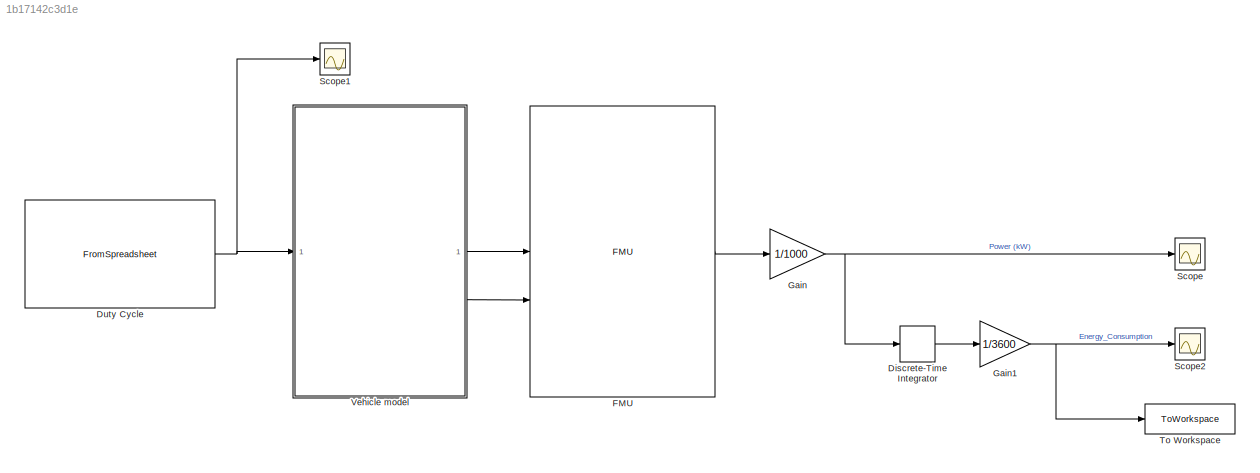
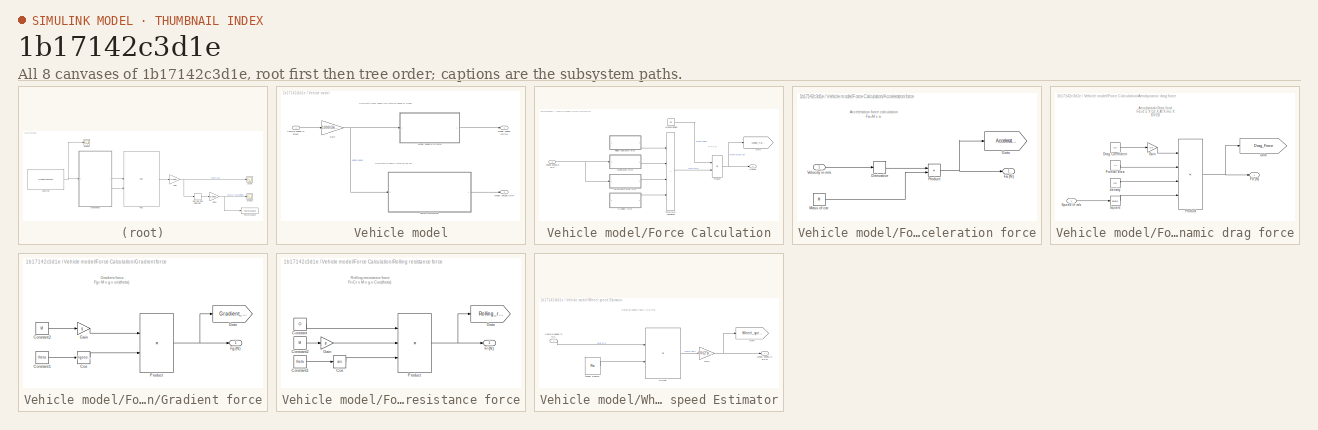
[diagram: thumbnail index - all 8 canvases of the model, root first then tree order]
MODEL slx_1b17142c3d1e
KIND model
CONFIG AbsTol = auto
CONFIG EnableMultiTasking = off
CONFIG FixedStep = auto
CONFIG MaxStep = 1
CONFIG MinStep = auto
CONFIG RelTol = 1e-3
CONFIG SampleTimeConstraint = Unconstrained
CONFIG SolverName = VariableStepAuto
CONFIG StartTime = 0.0
CONFIG StopTime = 1800
BLOCK [DiscreteIntegrator] Discrete-Time Integrator
  ICPrevOutput = DiscIntNeverNeededParam
  ICPrevScaledInput = DiscIntNeverNeededParam
  InitialConditionSetting = Auto
  SampleTime = -1
BLOCK [FromSpreadsheet] Duty Cycle
  FileName = WLTC_DRIVE_CYCLE_CLASS_3.xlsx
BLOCK [FMU] FMU
  FMUCachedDialogLayout = {"Geometry":[1315,326,535,467],"ParameterColumnsWidthConfig":"{\"columns\":[{\"name\":\"Parameter\",\"width\":144},{\"name\":\"Value\",\"width\":115},{\"name\":\"Unit\",\"width\":107},{\"name\":\"Description\",\"width\":149}]}","InputColumnsWidthConfig":[],"OutputColumnsWidthConfig":[]}
  FMUCreateBusObject = off
  FMUDebugLogging = on
  FMUInitializeEnumObject = off
  FMUMode = CoSimulation
  FMUName = eduModel.fmu
  MaskDisplay = if (exist([Simulink.fileGenControl('get','CacheFolder') '\slprj\_fmu\33689cabd0e25a119382c1209330c931\eduModel\model.png'],'file'))\n    image([Simulink.fileGenControl('get','CacheFolder') '\slprj\_fmu\33689cabd0e25a119382c1209330c931\eduModel\model.png']);\nelse\n    disp('eduModel');\nend\nport_label('output',1,'eduPwrIn_W');\nport_label('input',1,'eduSpd_rpm');\nport_label('input',2,'eduTrq_Nm');
  MaskPromptString = motorConfigmotorConfig|ratio[1]Reducer Ratio
  MaskType = eduModel [Co-Simulation, v2.0]
  motorConfig = 3
  ratio = 15
BLOCK [Gain] Gain
  Gain = 1/1000
BLOCK [Gain] Gain1
  Gain = 1/3600
BLOCK [Scope] Scope
  Floating = off
  NumInputPorts = 1
  ScopeSpecificationString = Simulink.scopes.TimeScopeBlockCfg('CurrentConfiguration', extmgr.ConfigurationSet(extmgr.Configuration('Core','General UI',true),extmgr.Configuration('Core','Source UI',true),extmgr.Configuration('Sources','WiredSimulink',true),extmgr.Configuration('Visuals','Time Domain',true,'SerializedDisplays',{struct('MinYLimReal','-57.81001','MaxYLimReal','520.18455','YLabelReal','','MinYLimMag','0.00000','M...<+1456ch>
BLOCK [Scope] Scope1
  Floating = off
  NumInputPorts = 1
  ScopeSpecificationString = Simulink.scopes.TimeScopeBlockCfg('CurrentConfiguration', extmgr.ConfigurationSet(extmgr.Configuration('Core','General UI',true),extmgr.Configuration('Core','Source UI',true),extmgr.Configuration('Sources','WiredSimulink',true,'DataLoggingVariableName','ScopeData1'),extmgr.Configuration('Visuals','Time Domain',true,'SerializedDisplays',{struct('MinYLimReal','-16.4125','MaxYLimReal','147.7125','YLa...<+1462ch>
BLOCK [Scope] Scope2
  Floating = off
  NumInputPorts = 1
  ScopeSpecificationString = Simulink.scopes.TimeScopeBlockCfg('CurrentConfiguration', extmgr.ConfigurationSet(extmgr.Configuration('Core','General UI',true),extmgr.Configuration('Core','Source UI',true),extmgr.Configuration('Sources','WiredSimulink',true,'DataLoggingVariableName','Energy_Consumption','DataLogging',true,'DataLoggingSaveFormat','StructureWithTime'),extmgr.Configuration('Visuals','Time Domain',true,'SerializedD...<+1565ch>
BLOCK [ToWorkspace] To Workspace
  FixptAsFi = on
  MaxDataPoints = inf
  SampleTime = -1
  SaveFormat = Timeseries
  VariableName = Energy_Consumption_kWhr
BLOCK [SubSystem] Vehicle model
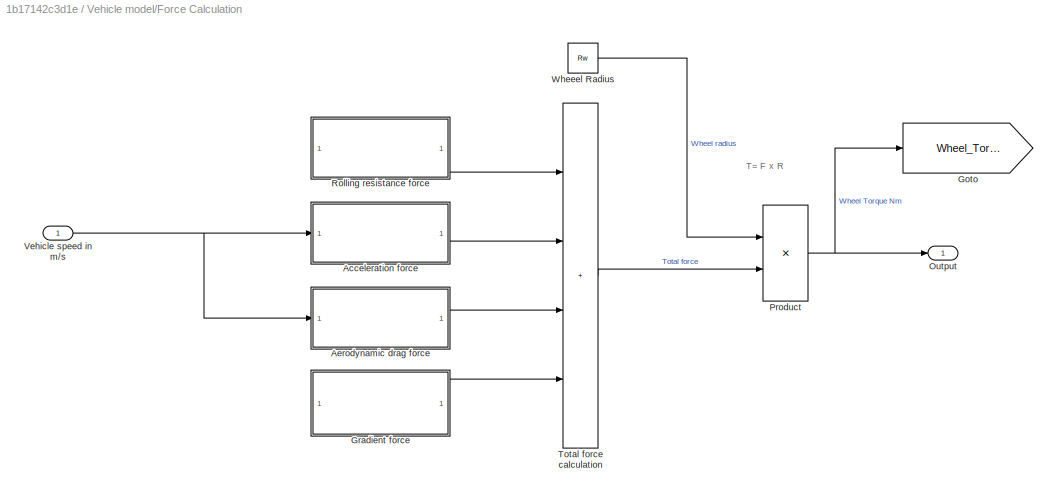
BLOCK [SubSystem] Vehicle model/Force Calculation
BLOCK [SubSystem] Vehicle model/Force Calculation/Acceleration force
BLOCK [Derivative] Vehicle model/Force Calculation/Acceleration force/Derivative
BLOCK [Outport] Vehicle model/Force Calculation/Acceleration force/Fa (N)
BLOCK [Goto] Vehicle model/Force Calculation/Acceleration force/Goto
  GotoTag = Acceleration_Force
  TagVisibility = global
BLOCK [Constant] Vehicle model/Force Calculation/Acceleration force/Mass of car
  Value = M
BLOCK [Product] Vehicle model/Force Calculation/Acceleration force/Product
BLOCK [Inport] Vehicle model/Force Calculation/Acceleration force/Velocity in m//s 
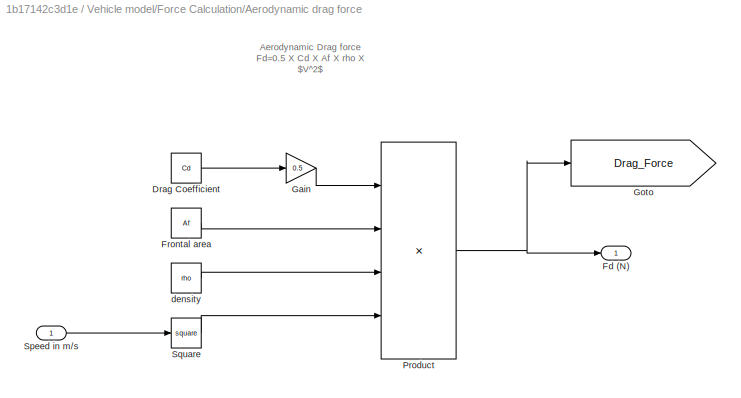
BLOCK [SubSystem] Vehicle model/Force Calculation/Aerodynamic drag force
BLOCK [Constant] Vehicle model/Force Calculation/Aerodynamic drag force/Drag Coefficient
  Value = Cd
BLOCK [Outport] Vehicle model/Force Calculation/Aerodynamic drag force/Fd (N)
BLOCK [Constant] Vehicle model/Force Calculation/Aerodynamic drag force/Frontal area
  Value = Af
BLOCK [Gain] Vehicle model/Force Calculation/Aerodynamic drag force/Gain
  Gain = 0.5
BLOCK [Goto] Vehicle model/Force Calculation/Aerodynamic drag force/Goto
  GotoTag = Drag_Force
  TagVisibility = global
BLOCK [Product] Vehicle model/Force Calculation/Aerodynamic drag force/Product
  Inputs = 4
BLOCK [Inport] Vehicle model/Force Calculation/Aerodynamic drag force/Speed in m//s
BLOCK [Math] Vehicle model/Force Calculation/Aerodynamic drag force/Square
  Operator = square
BLOCK [Constant] Vehicle model/Force Calculation/Aerodynamic drag force/density
  Value = rho
BLOCK [Goto] Vehicle model/Force Calculation/Goto
  GotoTag = Wheel_Torque
  TagVisibility = global
BLOCK [SubSystem] Vehicle model/Force Calculation/Gradient force
BLOCK [Constant] Vehicle model/Force Calculation/Gradient force/Constant1
  Value = theta
BLOCK [Constant] Vehicle model/Force Calculation/Gradient force/Constant2
  Value = M
BLOCK [Trigonometry] Vehicle model/Force Calculation/Gradient force/Cos
BLOCK [Outport] Vehicle model/Force Calculation/Gradient force/Fg (N)
BLOCK [Gain] Vehicle model/Force Calculation/Gradient force/Gain
  Gain = g
BLOCK [Goto] Vehicle model/Force Calculation/Gradient force/Goto
  GotoTag = Gradient_force
  TagVisibility = global
BLOCK [Product] Vehicle model/Force Calculation/Gradient force/Product
BLOCK [Outport] Vehicle model/Force Calculation/Output
BLOCK [Product] Vehicle model/Force Calculation/Product
BLOCK [SubSystem] Vehicle model/Force Calculation/Rolling resistance force
BLOCK [Constant] Vehicle model/Force Calculation/Rolling resistance force/Constant
  Value = Cr
BLOCK [Constant] Vehicle model/Force Calculation/Rolling resistance force/Constant1
  Value = theta
BLOCK [Constant] Vehicle model/Force Calculation/Rolling resistance force/Constant2
  Value = M
BLOCK [Trigonometry] Vehicle model/Force Calculation/Rolling resistance force/Cos
  Operator = cos
BLOCK [Outport] Vehicle model/Force Calculation/Rolling resistance force/Fr (N)
BLOCK [Gain] Vehicle model/Force Calculation/Rolling resistance force/Gain
  Gain = g
BLOCK [Goto] Vehicle model/Force Calculation/Rolling resistance force/Goto
  GotoTag = Rolling_resistance
  TagVisibility = global
BLOCK [Product] Vehicle model/Force Calculation/Rolling resistance force/Product
  Inputs = 3
BLOCK [Sum] Vehicle model/Force Calculation/Total force calculation
  IconShape = rectangular
  Inputs = ++++
BLOCK [Inport] Vehicle model/Force Calculation/Vehicle speed in m//s
BLOCK [Constant] Vehicle model/Force Calculation/Wheeel Radius
  Value = Rw
BLOCK [Gain] Vehicle model/Gain
  Gain = 1000/3600
BLOCK [Inport] Vehicle model/Vehicle speed in kmph
BLOCK [Outport] Vehicle model/Wheel Torque (Nm)
  Port = 2
BLOCK [Outport] Vehicle model/Wheel speed (RPM)
BLOCK [SubSystem] Vehicle model/Wheel speed Estimator
BLOCK [Product] Vehicle model/Wheel speed Estimator/Divide
  Inputs = */
BLOCK [Gain] Vehicle model/Wheel speed Estimator/Gain
  Gain = 60/(2*pi)
BLOCK [Goto] Vehicle model/Wheel speed Estimator/Goto
  GotoTag = Wheel_speed
  TagVisibility = global
BLOCK [Inport] Vehicle model/Wheel speed Estimator/Vehicle speed in m//s
BLOCK [Constant] Vehicle model/Wheel speed Estimator/Wheel Radius
  Value = Rw
BLOCK [Outport] Vehicle model/Wheel speed Estimator/Wheel speed in RPM
ANNOTATION Vehicle model: Calculate Linear speed into rotation speed of wheel
ANNOTATION Vehicle model: Calculate Dynamic force on the car
ANNOTATION Vehicle model/Force Calculation: T= F x R
ANNOTATION Vehicle model/Force Calculation/Acceleration force: Acceleration force calculation Fa=M x a
ANNOTATION Vehicle model/Force Calculation/Aerodynamic drag force: Aerodynamic Drag force Fd=0.5 X Cd X Af X rho X $V^2$
ANNOTATION Vehicle model/Force Calculation/Gradient force: Gradient force Fg= M x g x sin(theta)
ANNOTATION Vehicle model/Force Calculation/Rolling resistance force: Rolling resistance force Fr=Cr x M x g x Cos(theta)
ANNOTATION Vehicle model/Wheel speed Estimator: Rotation speed (rad/s) =Vw/Rw
LINE Discrete-Time Integrator:1 -> Gain1:1
NET Duty Cycle:1 -> Scope1:1, Vehicle model:1
LINE FMU:1 -> Gain:1
NET Gain1:1 -> Scope2:1, To Workspace:1
NET Gain:1 -> Discrete-Time Integrator:1, Scope:1
LINE Vehicle model/Force Calculation/Acceleration force/Derivative:1 -> Vehicle model/Force Calculation/Acceleration force/Product:1
LINE Vehicle model/Force Calculation/Acceleration force/Mass of car:1 -> Vehicle model/Force Calculation/Acceleration force/Product:2
NET Vehicle model/Force Calculation/Acceleration force/Product:1 -> Vehicle model/Force Calculation/Acceleration force/Fa (N):1, Vehicle model/Force Calculation/Acceleration force/Goto:1
LINE Vehicle model/Force Calculation/Acceleration force/Velocity in m//s :1 -> Vehicle model/Force Calculation/Acceleration force/Derivative:1
LINE Vehicle model/Force Calculation/Acceleration force:1 -> Vehicle model/Force Calculation/Total force calculation:2
LINE Vehicle model/Force Calculation/Aerodynamic drag force/Drag Coefficient:1 -> Vehicle model/Force Calculation/Aerodynamic drag force/Gain:1
LINE Vehicle model/Force Calculation/Aerodynamic drag force/Frontal area:1 -> Vehicle model/Force Calculation/Aerodynamic drag force/Product:2
LINE Vehicle model/Force Calculation/Aerodynamic drag force/Gain:1 -> Vehicle model/Force Calculation/Aerodynamic drag force/Product:1
NET Vehicle model/Force Calculation/Aerodynamic drag force/Product:1 -> Vehicle model/Force Calculation/Aerodynamic drag force/Fd (N):1, Vehicle model/Force Calculation/Aerodynamic drag force/Goto:1
LINE Vehicle model/Force Calculation/Aerodynamic drag force/Speed in m//s:1 -> Vehicle model/Force Calculation/Aerodynamic drag force/Square:1
LINE Vehicle model/Force Calculation/Aerodynamic drag force/Square:1 -> Vehicle model/Force Calculation/Aerodynamic drag force/Product:4
LINE Vehicle model/Force Calculation/Aerodynamic drag force/density:1 -> Vehicle model/Force Calculation/Aerodynamic drag force/Product:3
LINE Vehicle model/Force Calculation/Aerodynamic drag force:1 -> Vehicle model/Force Calculation/Total force calculation:3
LINE Vehicle model/Force Calculation/Gradient force/Constant1:1 -> Vehicle model/Force Calculation/Gradient force/Cos:1
LINE Vehicle model/Force Calculation/Gradient force/Constant2:1 -> Vehicle model/Force Calculation/Gradient force/Gain:1
LINE Vehicle model/Force Calculation/Gradient force/Cos:1 -> Vehicle model/Force Calculation/Gradient force/Product:2
LINE Vehicle model/Force Calculation/Gradient force/Gain:1 -> Vehicle model/Force Calculation/Gradient force/Product:1
NET Vehicle model/Force Calculation/Gradient force/Product:1 -> Vehicle model/Force Calculation/Gradient force/Fg (N):1, Vehicle model/Force Calculation/Gradient force/Goto:1
LINE Vehicle model/Force Calculation/Gradient force:1 -> Vehicle model/Force Calculation/Total force calculation:4
NET Vehicle model/Force Calculation/Product:1 -> Vehicle model/Force Calculation/Goto:1, Vehicle model/Force Calculation/Output:1
LINE Vehicle model/Force Calculation/Rolling resistance force/Constant1:1 -> Vehicle model/Force Calculation/Rolling resistance force/Cos:1
LINE Vehicle model/Force Calculation/Rolling resistance force/Constant2:1 -> Vehicle model/Force Calculation/Rolling resistance force/Gain:1
LINE Vehicle model/Force Calculation/Rolling resistance force/Constant:1 -> Vehicle model/Force Calculation/Rolling resistance force/Product:1
LINE Vehicle model/Force Calculation/Rolling resistance force/Cos:1 -> Vehicle model/Force Calculation/Rolling resistance force/Product:3
LINE Vehicle model/Force Calculation/Rolling resistance force/Gain:1 -> Vehicle model/Force Calculation/Rolling resistance force/Product:2
NET Vehicle model/Force Calculation/Rolling resistance force/Product:1 -> Vehicle model/Force Calculation/Rolling resistance force/Fr (N):1, Vehicle model/Force Calculation/Rolling resistance force/Goto:1
LINE Vehicle model/Force Calculation/Rolling resistance force:1 -> Vehicle model/Force Calculation/Total force calculation:1
LINE Vehicle model/Force Calculation/Total force calculation:1 -> Vehicle model/Force Calculation/Product:2
NET Vehicle model/Force Calculation/Vehicle speed in m//s:1 -> Vehicle model/Force Calculation/Acceleration force:1, Vehicle model/Force Calculation/Aerodynamic drag force:1
LINE Vehicle model/Force Calculation/Wheeel Radius:1 -> Vehicle model/Force Calculation/Product:1
LINE Vehicle model/Force Calculation:1 -> Vehicle model/Wheel Torque (Nm):1
NET Vehicle model/Gain:1 -> Vehicle model/Force Calculation:1, Vehicle model/Wheel speed Estimator:1
LINE Vehicle model/Vehicle speed in kmph:1 -> Vehicle model/Gain:1
LINE Vehicle model/Wheel speed Estimator/Divide:1 -> Vehicle model/Wheel speed Estimator/Gain:1
NET Vehicle model/Wheel speed Estimator/Gain:1 -> Vehicle model/Wheel speed Estimator/Goto:1, Vehicle model/Wheel speed Estimator/Wheel speed in RPM:1
LINE Vehicle model/Wheel speed Estimator/Vehicle speed in m//s:1 -> Vehicle model/Wheel speed Estimator/Divide:1
LINE Vehicle model/Wheel speed Estimator/Wheel Radius:1 -> Vehicle model/Wheel speed Estimator/Divide:2
LINE Vehicle model/Wheel speed Estimator:1 -> Vehicle model/Wheel speed (RPM):1
LINE Vehicle model:1 -> FMU:1
LINE Vehicle model:2 -> FMU:2
note: NET lines group one-source signal fan-out (src -> all destinations, sorted); 1:1 wires keep LINE
